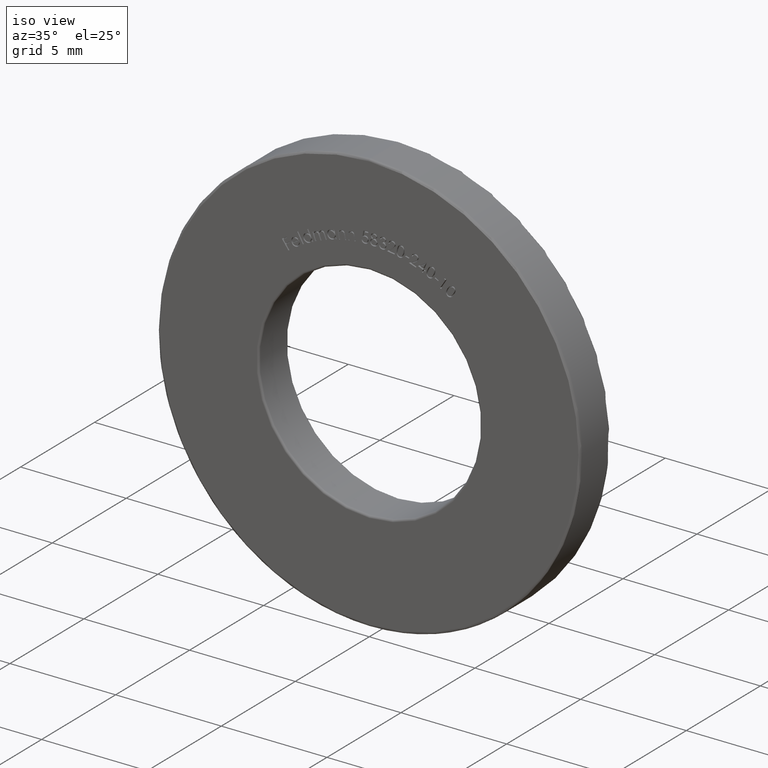
[diagram: clean part render]
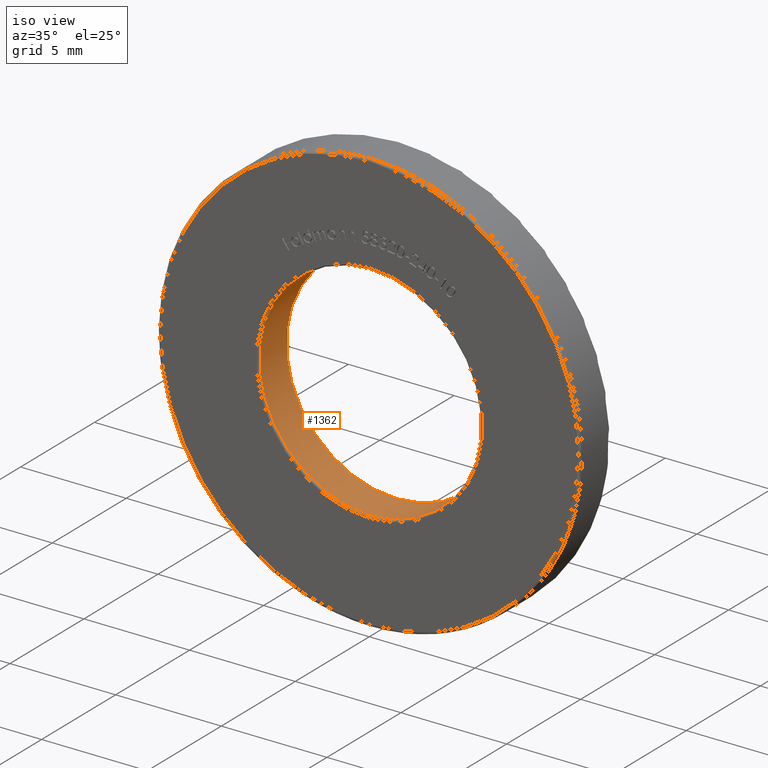
[diagram: same view with one face highlighted and labeled with its STEP entity id]
A machine part, iso view. The second image highlights one B-rep face of the part: STEP entity #1362.
In plain terms, the highlighted cylindrical surface (bore or boss wall) has radius 5.25 mm, axis along (-0, -1, -0).
Its self-contained STEP definition (entity closure, byte-faithful):
#552 = ORIENTED_EDGE ( 'NONE', *, *, #3565, .T. ) ;
#1080 = CIRCLE ( 'NONE', #5086, 5.250000000000000000 ) ;
#1284 = CARTESIAN_POINT ( 'NONE',  ( 0.0000000000000000000, 0.1000000000000000500, 5.250000000000000000 ) ) ;
#1362 = ADVANCED_FACE ( 'NONE', ( #10853, #7296 ), #13511, .F. ) ;
#1718 = AXIS2_PLACEMENT_3D ( 'NONE', #4229, #12610, #12656 ) ;
#2682 = CARTESIAN_POINT ( 'NONE',  ( 0.0000000000000000000, 0.1000000000000000500, 0.0000000000000000000 ) ) ;
#3565 = EDGE_CURVE ( 'NONE', #5728, #5728, #6017, .T. ) ;
#3592 = CARTESIAN_POINT ( 'NONE',  ( 0.0000000000000000000, 1.899999999999999900, 5.250000000000000000 ) ) ;
#4229 = CARTESIAN_POINT ( 'NONE',  ( 0.0000000000000000000, 2.000000000000000000, 0.0000000000000000000 ) ) ;
#5086 = AXIS2_PLACEMENT_3D ( 'NONE', #2682, #5507, #13892 ) ;
#5507 = DIRECTION ( 'NONE',  ( -0.0000000000000000000, -1.000000000000000000, -0.0000000000000000000 ) ) ;
#5728 = VERTEX_POINT ( 'NONE', #3592 ) ;
#6017 = CIRCLE ( 'NONE', #10850, 5.250000000000000000 ) ;
#6895 = DIRECTION ( 'NONE',  ( 0.0000000000000000000, 1.000000000000000000, 0.0000000000000000000 ) ) ;
#6947 = DIRECTION ( 'NONE',  ( 0.0000000000000000000, 0.0000000000000000000, 1.000000000000000000 ) ) ;
#7296 = FACE_OUTER_BOUND ( 'NONE', #13124, .T. ) ;
#9137 = CARTESIAN_POINT ( 'NONE',  ( 0.0000000000000000000, 1.899999999999999900, 0.0000000000000000000 ) ) ;
#9418 = EDGE_LOOP ( 'NONE', ( #15131 ) ) ;
#10850 = AXIS2_PLACEMENT_3D ( 'NONE', #9137, #6895, #6947 ) ;
#10853 = FACE_OUTER_BOUND ( 'NONE', #9418, .T. ) ;
#12114 = VERTEX_POINT ( 'NONE', #1284 ) ;
#12610 = DIRECTION ( 'NONE',  ( -0.0000000000000000000, -1.000000000000000000, -0.0000000000000000000 ) ) ;
#12656 = DIRECTION ( 'NONE',  ( 0.0000000000000000000, 0.0000000000000000000, -1.000000000000000000 ) ) ;
#13124 = EDGE_LOOP ( 'NONE', ( #552 ) ) ;
#13511 = CYLINDRICAL_SURFACE ( 'NONE', #1718, 5.250000000000000000 ) ;
#13892 = DIRECTION ( 'NONE',  ( 0.0000000000000000000, 0.0000000000000000000, 1.000000000000000000 ) ) ;
#14189 = EDGE_CURVE ( 'NONE', #12114, #12114, #1080, .T. ) ;
#15131 = ORIENTED_EDGE ( 'NONE', *, *, #14189, .T. ) ;